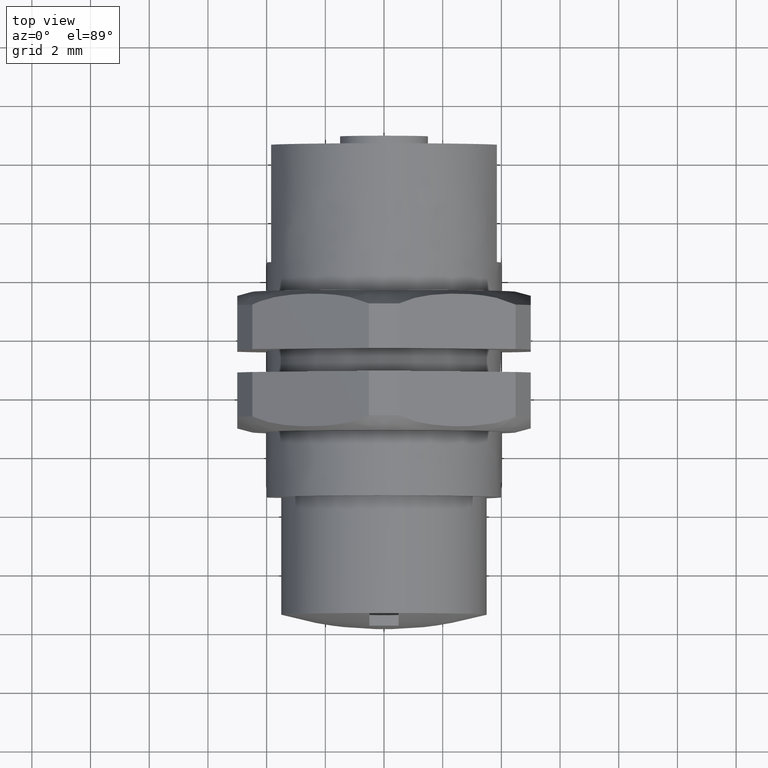
[diagram: clean part render]
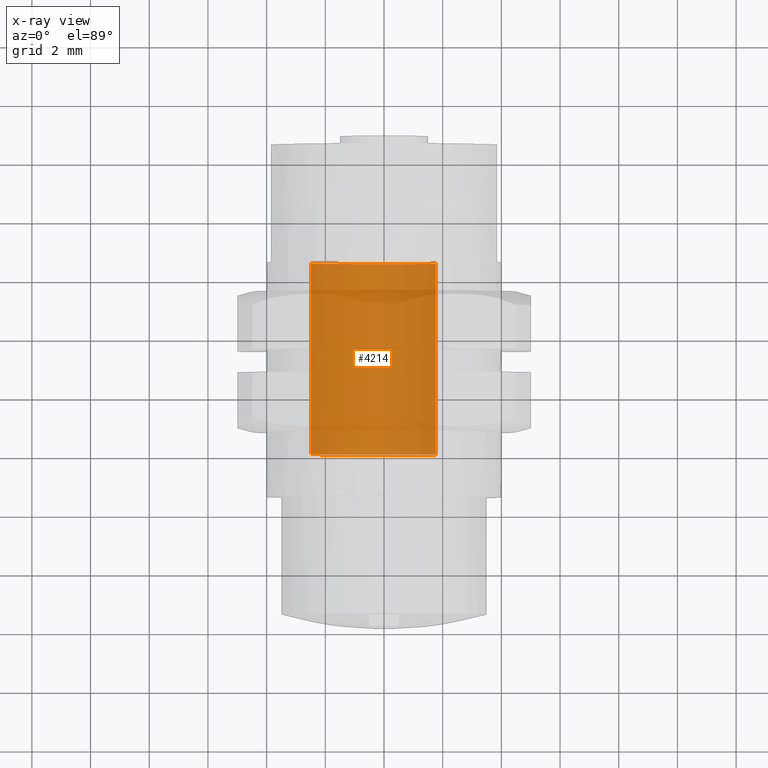
[diagram: x-ray — body ghosted, one internal face saturated and labeled with its STEP entity id]
A machine part, top view, then the same camera in x-ray: the body is ghosted and one INTERNAL B-rep face — a face not visible from any outside direction — is saturated and labeled: STEP entity #4214.
In plain terms, the highlighted face is a freeform B-spline surface patch.
Its self-contained STEP definition (entity closure, byte-faithful):
#4039=CARTESIAN_POINT('',(12.500000000000000,-1.765052187916681,174.191235666128990));
#4040=VERTEX_POINT('',#4039);
#4058=CARTESIAN_POINT('',(6.0,-1.765050976298991,174.191234806363700));
#4059=VERTEX_POINT('',#4058);
#4060=CARTESIAN_POINT('',(12.500000000000000,-1.765052187916681,174.191235666128990));
#4061=CARTESIAN_POINT('',(6.0,-1.765050976298991,174.191234806363700));
#4062=QUASI_UNIFORM_CURVE('',1,(#4060,#4061),.UNSPECIFIED.,.F.,.U.);
#4063=EDGE_CURVE('',#4040,#4059,#4062,.T.);
#4082=CARTESIAN_POINT('',(5.999999999999998,2.487387160840817,174.913570977484110));
#4083=VERTEX_POINT('',#4082);
#4099=CARTESIAN_POINT('',(12.500000000000000,2.487387193662209,174.913571023737490));
#4100=VERTEX_POINT('',#4099);
#4101=CARTESIAN_POINT('',(12.500000000000000,2.487387193662209,174.913571023737490));
#4102=CARTESIAN_POINT('',(5.999999999999998,2.487387160840817,174.913570977484110));
#4103=QUASI_UNIFORM_CURVE('',1,(#4101,#4102),.UNSPECIFIED.,.F.,.U.);
#4104=EDGE_CURVE('',#4100,#4083,#4103,.T.);
#4153=CARTESIAN_POINT('',(12.824675110982639,2.487387193646105,174.913571023714810));
#4154=CARTESIAN_POINT('',(12.824675110982641,0.722336217360892,172.426183830068680));
#4155=CARTESIAN_POINT('',(12.824675110982639,-1.765050976285206,174.191234806353890));
#4156=CARTESIAN_POINT('',(5.730937500000000,2.487387193646105,174.913571023714810));
#4157=CARTESIAN_POINT('',(5.730937500000000,0.722336217360892,172.426183830068680));
#4158=CARTESIAN_POINT('',(5.730937500000000,-1.765050976285206,174.191234806353890));
#4166=(BOUNDED_SURFACE()B_SPLINE_SURFACE(2,1,((#4153,#4156),(#4154,#4157),(#4155,#4158)),.UNSPECIFIED.,.F.,.F.,.U.)B_SPLINE_SURFACE_WITH_KNOTS((3,3),(2,2),(0.0,5.053405460951765),(0.0,7.093737610982641),.UNSPECIFIED.)GEOMETRIC_REPRESENTATION_ITEM()RATIONAL_B_SPLINE_SURFACE(((1.0,1.0),(0.707106781186548,0.707106781186548),(1.0,1.0)))REPRESENTATION_ITEM('')SURFACE());
#4167=CARTESIAN_POINT('',(12.499999999999998,2.487387193662209,174.913571023737460));
#4168=CARTESIAN_POINT('',(12.500000000000005,2.214243043543842,174.528644316136140));
#4169=CARTESIAN_POINT('',(12.500000000000000,1.837525862978076,174.244284574151490));
#4170=CARTESIAN_POINT('',(12.500000000000005,0.055652070993204,172.899261841243400));
#4171=CARTESIAN_POINT('',(12.499999999999995,-1.765052187916896,174.191235666128730));
#4179=(BOUNDED_CURVE()B_SPLINE_CURVE(2,(#4167,#4168,#4169,#4170,#4171),.UNSPECIFIED.,.F.,.U.)B_SPLINE_CURVE_WITH_KNOTS((3,2,3),(0.251932996619571,0.333333333333333,0.658559468929375),.UNSPECIFIED.)CURVE()GEOMETRIC_REPRESENTATION_ITEM()RATIONAL_B_SPLINE_CURVE((0.925487922317411,0.950706418847875,1.0,0.803052891977964,0.990419865108866))REPRESENTATION_ITEM(''));
#4180=EDGE_CURVE('',#4100,#4040,#4179,.T.);
#4181=ORIENTED_EDGE('',*,*,#4180,.F.);
#4182=ORIENTED_EDGE('',*,*,#4104,.T.);
#4183=CARTESIAN_POINT('',(6.0,7.105427E-015,173.628622000000010));
#4184=VERTEX_POINT('',#4183);
#4185=CARTESIAN_POINT('',(6.0,7.105427E-015,173.628622000000010));
#4186=CARTESIAN_POINT('',(5.999999999999999,1.575586765787587,173.628622000000010));
#4187=CARTESIAN_POINT('',(5.999999999999999,2.487387160840818,174.913570977484200));
#4195=(BOUNDED_CURVE()B_SPLINE_CURVE(2,(#4185,#4186,#4187),.UNSPECIFIED.,.F.,.U.)B_SPLINE_CURVE_WITH_KNOTS((3,3),(0.0,0.150448230695785),.UNSPECIFIED.)CURVE()GEOMETRIC_REPRESENTATION_ITEM()RATIONAL_B_SPLINE_CURVE((1.0,0.823738933786890,0.859623191992301))REPRESENTATION_ITEM(''));
#4196=EDGE_CURVE('',#4184,#4083,#4195,.T.);
#4197=ORIENTED_EDGE('',*,*,#4196,.F.);
#4198=CARTESIAN_POINT('',(6.0,-1.765050976298991,174.191234806363750));
#4199=CARTESIAN_POINT('',(6.0,-0.972192351647395,173.628622000000010));
#4200=CARTESIAN_POINT('',(6.0,7.105427E-015,173.628622000000010));
#4208=(BOUNDED_CURVE()B_SPLINE_CURVE(2,(#4198,#4199,#4200),.UNSPECIFIED.,.F.,.U.)B_SPLINE_CURVE_WITH_KNOTS((3,3),(0.900448236342817,1.0),.UNSPECIFIED.)CURVE()GEOMETRIC_REPRESENTATION_ITEM()RATIONAL_B_SPLINE_CURVE((0.859623194686112,0.883367854015566,1.0))REPRESENTATION_ITEM(''));
#4209=EDGE_CURVE('',#4059,#4184,#4208,.T.);
#4210=ORIENTED_EDGE('',*,*,#4209,.F.);
#4211=ORIENTED_EDGE('',*,*,#4063,.F.);
#4212=EDGE_LOOP('',(#4181,#4182,#4197,#4210,#4211));
#4213=FACE_OUTER_BOUND('',#4212,.T.);
#4214=ADVANCED_FACE('',(#4213),#4166,.F.);